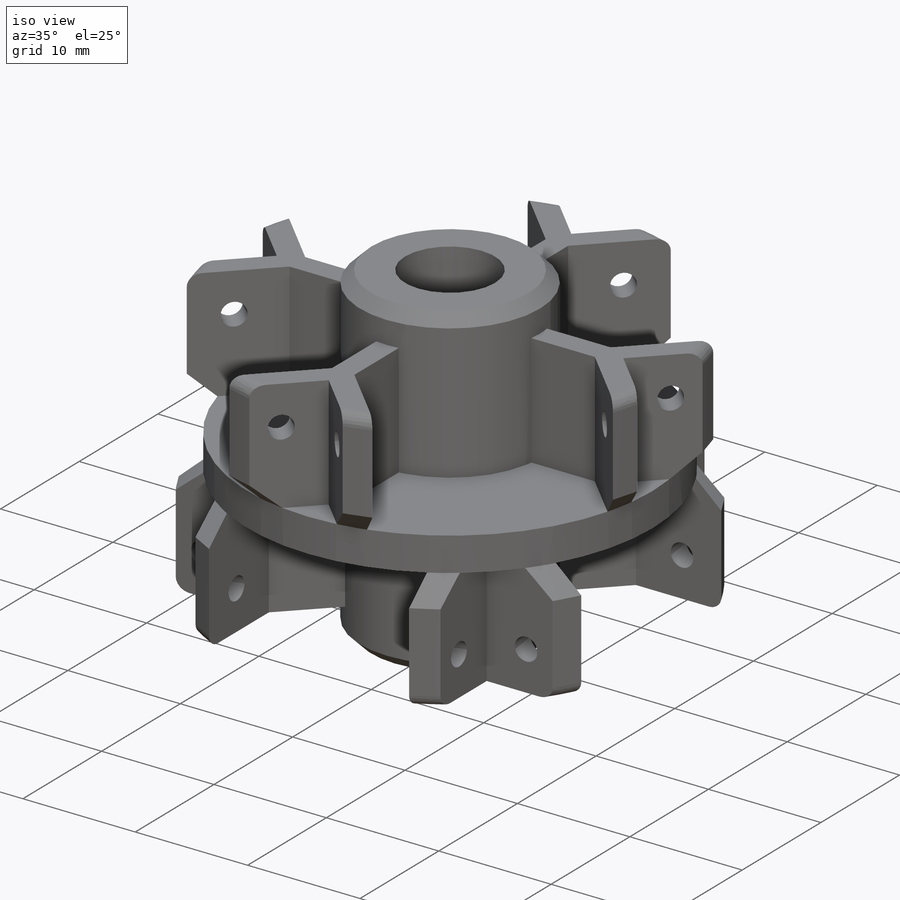
[diagram: iso view]
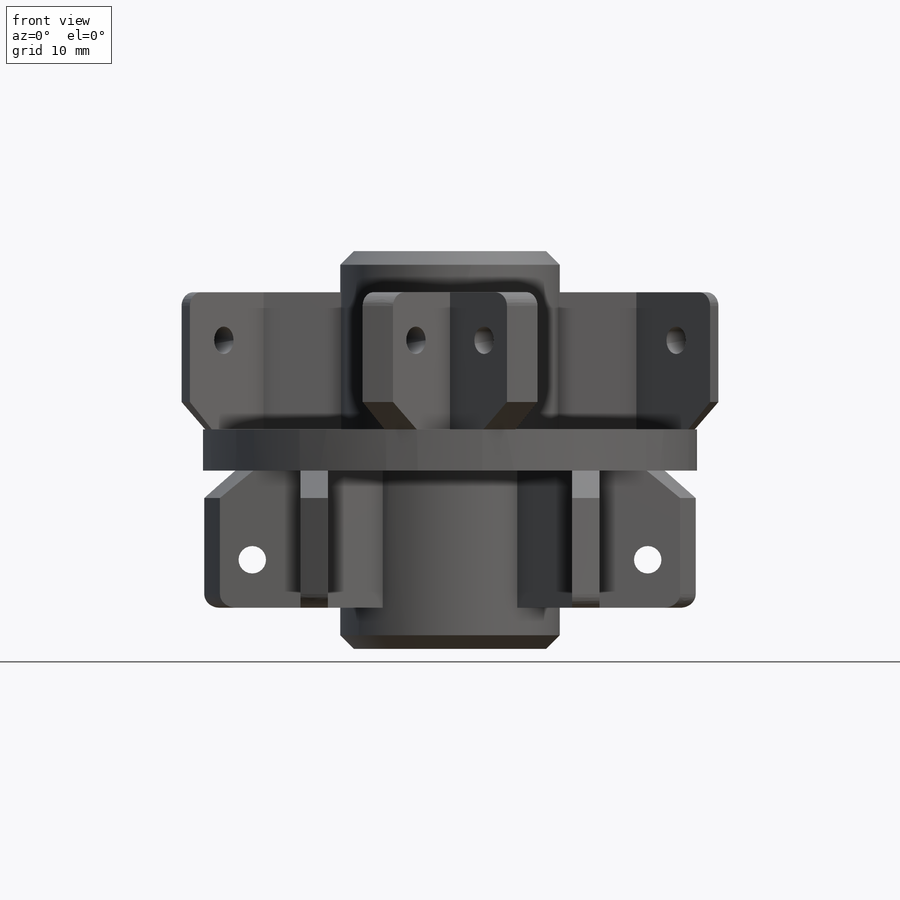
[diagram: front view]
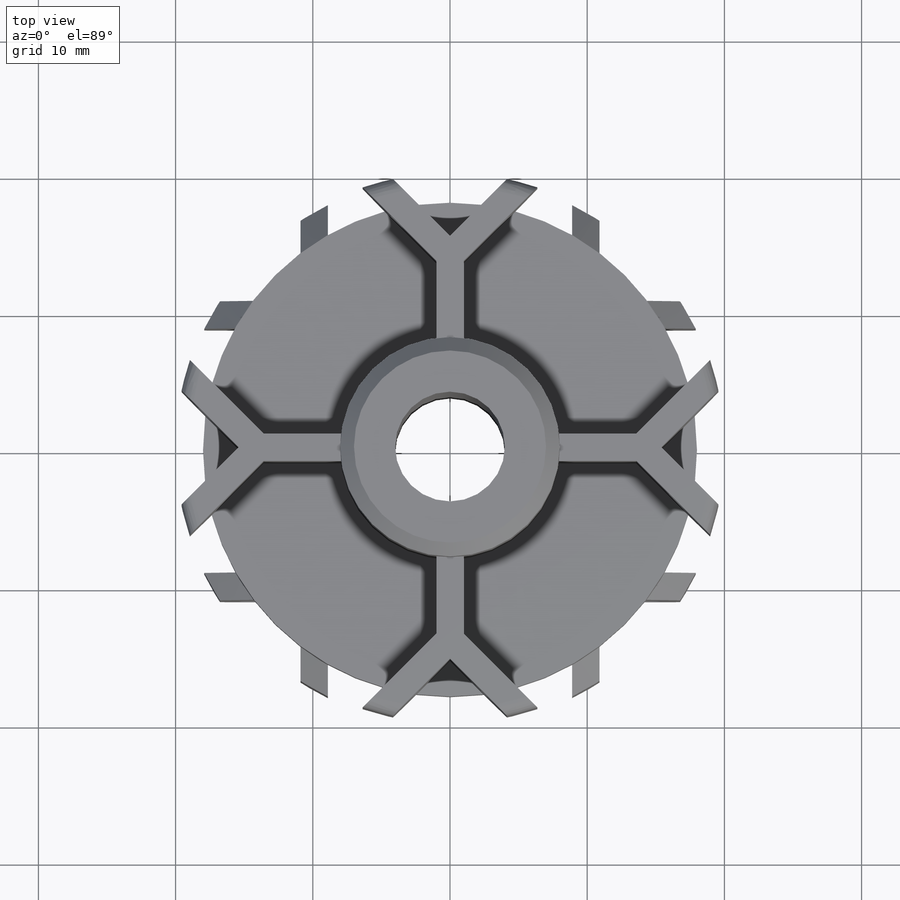
[diagram: top view]
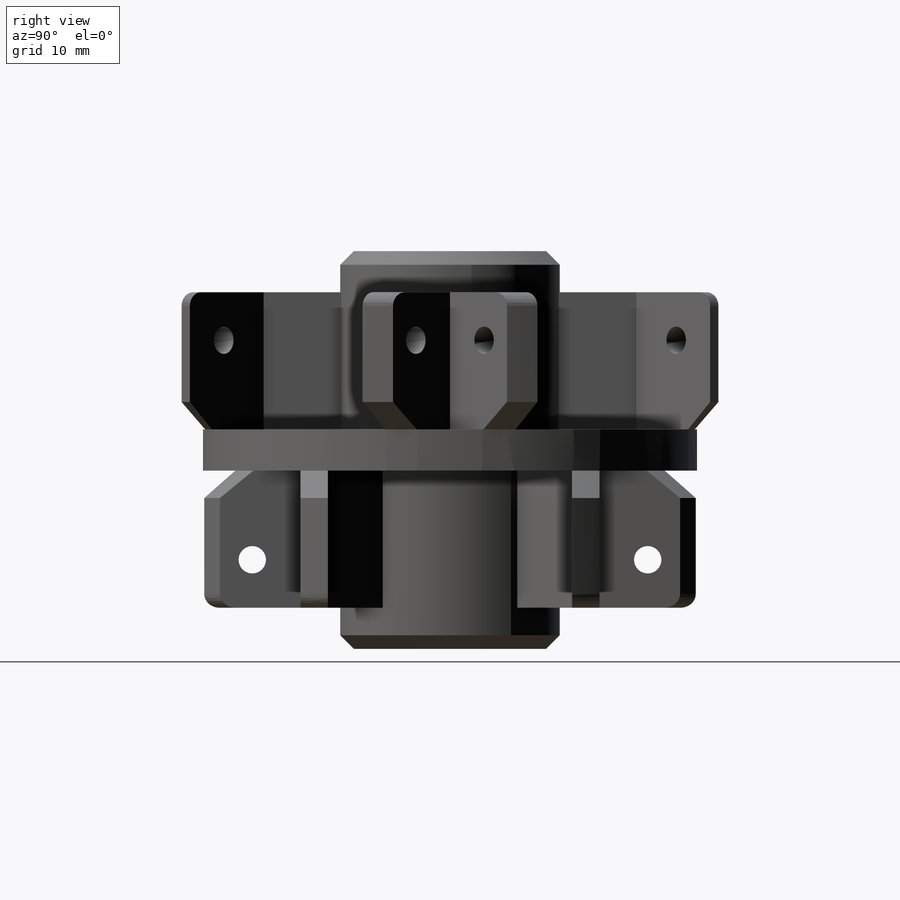
[diagram: right view]
SOLIDWORKS PART (.sldprt)
format: sldprt  version: not decoded by parser v0  size: 573,952 bytes
history: native  units: mm
features: sketch x10, plane x3, extrude x3, cut_extrude x2, hole x2, pattern_circular x2, material x1, mirror x1, chamfer x1, fillet x1, cut_revolve x1 (+10 scaffold rows collapsed)
feature tree (37):
  scaffold x10  (default folders/planes/origin — collapsed)
  material  "ABS generico"
  plane  "Piano frontale"
  plane  "Piano superiore"
  plane  "Piano destro"
  sketch  "Schizzo2"  dims[D1=40.0mm]
  extrude  "Estrusione-Estrusione1"  Depth=29mm
  sketch  "Schizzo3"  dims[D1=16.0mm]
  cut_extrude  "Taglio-Estrusione1"  Depth=13mm
  mirror  "Specchia2"
  sketch  "Schizzo6"  dims[c1.D5=8.0mm c1.D1=6.0mm c1.D2=~5.259846mm c2.D2=135.0deg c2.D3=~5.288206mm c3.D3=135.0deg c4.D3=1.0mm c4.D4=1.0mm c4.D5=4.0]
  extrude  "Estrusione-Estrusione2"  Depth=10mm
  sketch  "Schizzo20"  dims[c1.D6=20.0mm c1.D1=6.0mm c1.D2=~5.071779mm c2.D2=135.0deg c2.D3=~7.191692mm c3.D3=135.0deg c3.D4=1.0mm c3.D5=1.0mm c3.D6=4.0]
  extrude  "Estrusione-Estrusione3"  Depth=10mm
  chamfer  "Smusso1"  Distance=1mm Angle=45deg
  fillet  "Raccordo1"  Radius=1mm
  sketch  "Schizzo11"  dims[D1=8.0mm]
  cut_extrude  "Taglio-Estrusione2"  [1 undecoded]
  sketch  "Schizzo22"  dims[D1=2.0mm D2=2.0mm]
  cut_revolve  "Taglia-Rivoluzione1"  Angle=360deg
  hole  "Foro Ø2.0 (2)-1"  Diameter=2mm Depth=38.698163mm
  sketch  "Schizzo24"  dims[D1=3.5mm D2=3.5mm]
  sketch  "Schizzo23"  dims[hole-wizard template sketch: 60 standard entries collapsed; hole parameters kept: c18.Thru Hole Depth=~38.698163mm]
  pattern_circular  "RipetizioneCircolare1"  Count=4 Angle=90deg
  hole  "Foro Ø2.0 (2)-2"  Diameter=2mm Depth=38.7mm
  sketch  "Schizzo26"  dims[D1=3.5mm D2=3.5mm]
  sketch  "Schizzo25"  dims[hole-wizard template sketch: 47 standard entries collapsed; hole parameters kept: c15.Hole Depth=38.7mm c15.D3=~14.816244mm c15.Drill Angle=118.0deg]
  pattern_circular  "RipetizioneCircolare2"  Count=4 Angle=360deg
decode coverage: 21 of 23 modeling features carry decoded parameters
note: ~ marks probable driven/reference dimensions
note: 1 parameter value undecoded
note: suppression state not decoded; provenance and decode notes live in map.json
